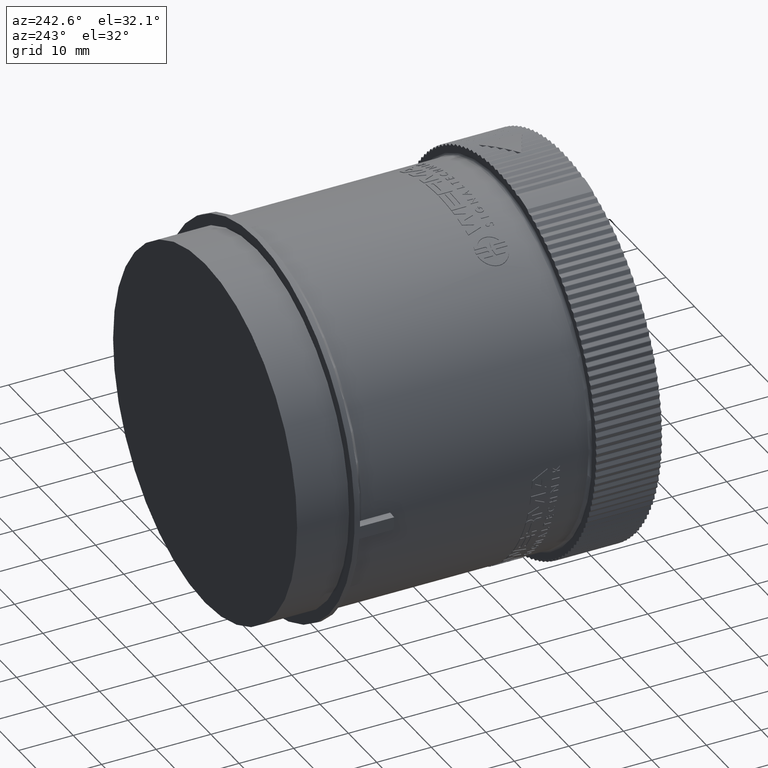
[diagram: clean part render]
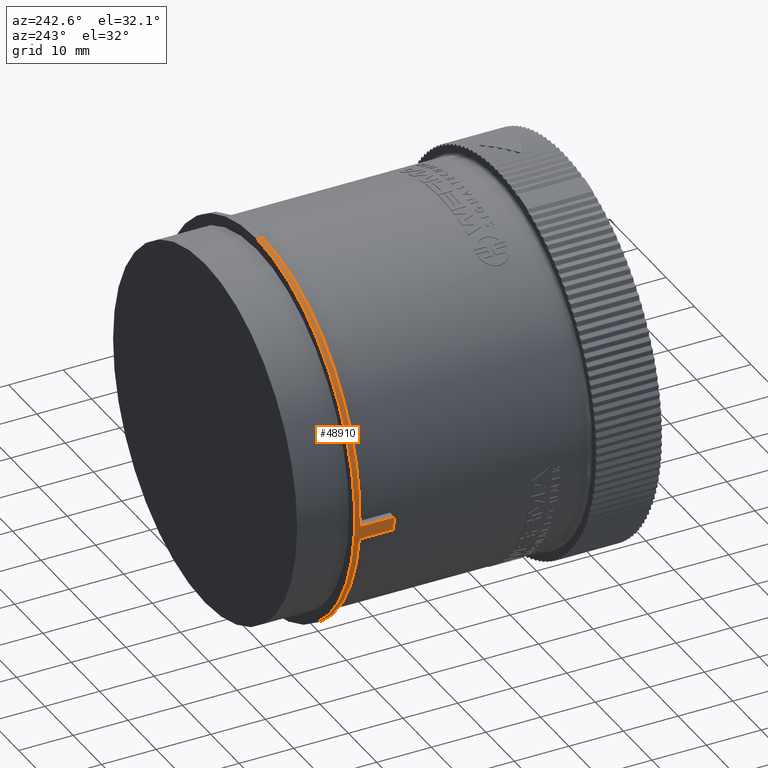
[diagram: same view with one face highlighted and labeled with its STEP entity id]
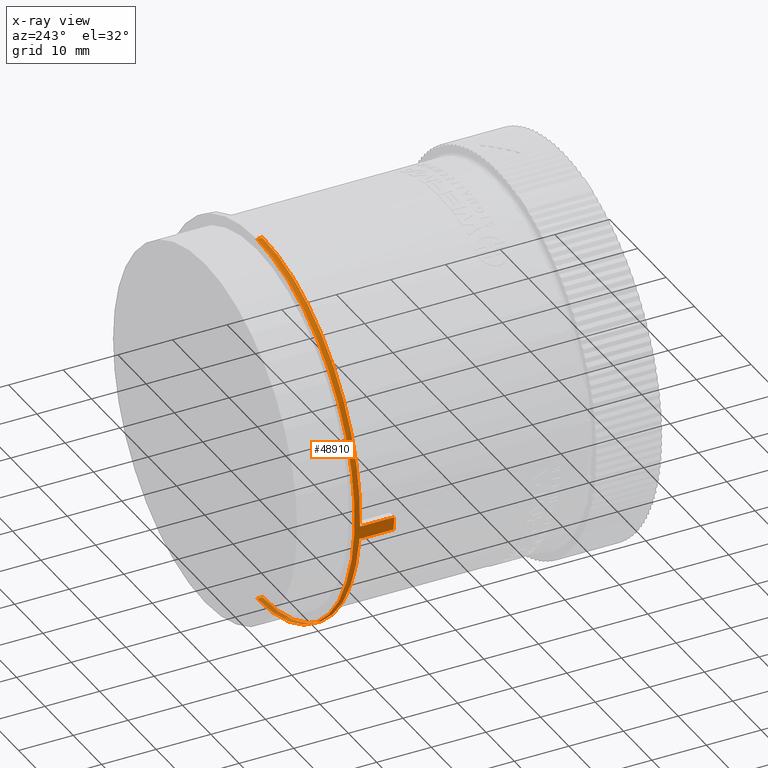
[diagram: x-ray of the same camera — body ghosted, the highlighted face saturated]
A machine part, auxiliary view. The second image highlights one B-rep face of the part: STEP entity #48910.
The next image is the same camera in x-ray: the body ghosted, the highlighted face saturated — about 5% of this face is hidden behind the body in this view.
In plain terms, the highlighted cylindrical surface (partial cylindrical patch) has radius 34.5 mm, axis along (0, -1, 0).
Its self-contained STEP definition (entity closure, byte-faithful):
#5 = CARTESIAN_POINT ( 'NONE',  ( 0.0000000000000000000, 2.185039370078740700, 0.0000000000000000000 ) ) ;
#154 = DIRECTION ( 'NONE',  ( 0.0000000000000000000, 0.0000000000000000000, -1.000000000000000000 ) ) ;
#458 = LINE ( 'NONE', #4933, #19859 ) ;
#694 = VERTEX_POINT ( 'NONE', #27841 ) ;
#833 = EDGE_CURVE ( 'NONE', #5291, #23348, #49723, .T. ) ;
#2002 = DIRECTION ( 'NONE',  ( 0.0000000000000000000, 0.0000000000000000000, -1.000000000000000000 ) ) ;
#2502 = ORIENTED_EDGE ( 'NONE', *, *, #5493, .F. ) ;
#3747 = DIRECTION ( 'NONE',  ( 0.0000000000000000000, -1.000000000000000000, 0.0000000000000000000 ) ) ;
#4933 = CARTESIAN_POINT ( 'NONE',  ( -1.356499826672729900, 2.204724409448819400, -0.06927777435247771400 ) ) ;
#5291 = VERTEX_POINT ( 'NONE', #44694 ) ;
#5493 = EDGE_CURVE ( 'NONE', #5291, #26216, #16349, .T. ) ;
#6168 = FACE_OUTER_BOUND ( 'NONE', #42176, .T. ) ;
#6377 = CARTESIAN_POINT ( 'NONE',  ( 0.0000000000000000000, 2.185039370078740700, -1.358267716535433300 ) ) ;
#7996 = ORIENTED_EDGE ( 'NONE', *, *, #8808, .F. ) ;
#8348 = ORIENTED_EDGE ( 'NONE', *, *, #49016, .F. ) ;
#8808 = EDGE_CURVE ( 'NONE', #26341, #27035, #458, .T. ) ;
#9322 = ORIENTED_EDGE ( 'NONE', *, *, #36774, .T. ) ;
#9392 = DIRECTION ( 'NONE',  ( 0.0000000000000000000, -1.000000000000000000, 0.0000000000000000000 ) ) ;
#9503 = CARTESIAN_POINT ( 'NONE',  ( -1.356499826672729900, 2.165354330708661600, -0.06927777435247772800 ) ) ;
#9612 = ORIENTED_EDGE ( 'NONE', *, *, #18564, .T. ) ;
#11179 = AXIS2_PLACEMENT_3D ( 'NONE', #40316, #16965, #44205 ) ;
#11619 = EDGE_CURVE ( 'NONE', #23348, #694, #33641, .T. ) ;
#12171 = AXIS2_PLACEMENT_3D ( 'NONE', #5, #3747, #19334 ) ;
#12922 = VECTOR ( 'NONE', #18039, 39.37007874015748100 ) ;
#15296 = ORIENTED_EDGE ( 'NONE', *, *, #11619, .T. ) ;
#15320 = CARTESIAN_POINT ( 'NONE',  ( 0.0000000000000000000, 2.204724409448819400, -1.358267716535433300 ) ) ;
#15571 = CARTESIAN_POINT ( 'NONE',  ( 1.663398211440302800E-016, 2.185039370078740700, 1.358267716535433300 ) ) ;
#16349 = LINE ( 'NONE', #15571, #25489 ) ;
#16965 = DIRECTION ( 'NONE',  ( -0.0000000000000000000, 1.000000000000000000, -0.0000000000000000000 ) ) ;
#17356 = VERTEX_POINT ( 'NONE', #35623 ) ;
#18039 = DIRECTION ( 'NONE',  ( 0.0000000000000000000, -1.000000000000000000, 0.0000000000000000000 ) ) ;
#18564 = EDGE_CURVE ( 'NONE', #26341, #26216, #32271, .T. ) ;
#19334 = DIRECTION ( 'NONE',  ( 0.0000000000000000000, 0.0000000000000000000, -1.000000000000000000 ) ) ;
#19859 = VECTOR ( 'NONE', #36046, 39.37007874015748100 ) ;
#20042 = CARTESIAN_POINT ( 'NONE',  ( 1.663398211440302800E-016, 2.165354330708661600, 1.358267716535433300 ) ) ;
#20137 = AXIS2_PLACEMENT_3D ( 'NONE', #48520, #25248, #2002 ) ;
#21624 = CIRCLE ( 'NONE', #20137, 1.358267716535433300 ) ;
#23149 = LINE ( 'NONE', #31581, #42628 ) ;
#23348 = VERTEX_POINT ( 'NONE', #15320 ) ;
#23412 = DIRECTION ( 'NONE',  ( -0.0000000000000000000, 1.000000000000000000, -0.0000000000000000000 ) ) ;
#24668 = AXIS2_PLACEMENT_3D ( 'NONE', #32705, #9392, #36614 ) ;
#25248 = DIRECTION ( 'NONE',  ( -0.0000000000000000000, 1.000000000000000000, -0.0000000000000000000 ) ) ;
#25292 = VERTEX_POINT ( 'NONE', #44996 ) ;
#25489 = VECTOR ( 'NONE', #27336, 39.37007874015748100 ) ;
#25578 = CYLINDRICAL_SURFACE ( 'NONE', #12171, 1.358267716535433300 ) ;
#25747 = CARTESIAN_POINT ( 'NONE',  ( -1.356499826672729900, 1.919291338582677500, -0.06927777435247771400 ) ) ;
#26216 = VERTEX_POINT ( 'NONE', #20042 ) ;
#26341 = VERTEX_POINT ( 'NONE', #9503 ) ;
#27035 = VERTEX_POINT ( 'NONE', #25747 ) ;
#27054 = AXIS2_PLACEMENT_3D ( 'NONE', #46665, #23412, #154 ) ;
#27336 = DIRECTION ( 'NONE',  ( 0.0000000000000000000, -1.000000000000000000, 0.0000000000000000000 ) ) ;
#27626 = ORIENTED_EDGE ( 'NONE', *, *, #833, .T. ) ;
#27841 = CARTESIAN_POINT ( 'NONE',  ( 0.0000000000000000000, 2.165354330708661600, -1.358267716535433300 ) ) ;
#31581 = CARTESIAN_POINT ( 'NONE',  ( -1.347921505536150200, 2.204724409448819400, -0.1673284336134690200 ) ) ;
#32271 = CIRCLE ( 'NONE', #27054, 1.358267716535433300 ) ;
#32705 = CARTESIAN_POINT ( 'NONE',  ( 0.0000000000000000000, 2.204724409448819400, 0.0000000000000000000 ) ) ;
#33641 = LINE ( 'NONE', #6377, #12922 ) ;
#35623 = CARTESIAN_POINT ( 'NONE',  ( -1.347921505536150400, 1.919291338582677300, -0.1673284336134690500 ) ) ;
#36046 = DIRECTION ( 'NONE',  ( -0.0000000000000000000, -1.000000000000000000, 0.0000000000000000000 ) ) ;
#36614 = DIRECTION ( 'NONE',  ( 0.0000000000000000000, 0.0000000000000000000, -1.000000000000000000 ) ) ;
#36774 = EDGE_CURVE ( 'NONE', #17356, #27035, #46796, .T. ) ;
#39423 = DIRECTION ( 'NONE',  ( 0.0000000000000000000, 1.000000000000000000, 0.0000000000000000000 ) ) ;
#40313 = ORIENTED_EDGE ( 'NONE', *, *, #40479, .T. ) ;
#40316 = CARTESIAN_POINT ( 'NONE',  ( 0.0000000000000000000, 1.919291338582677500, 0.0000000000000000000 ) ) ;
#40479 = EDGE_CURVE ( 'NONE', #694, #25292, #21624, .T. ) ;
#42176 = EDGE_LOOP ( 'NONE', ( #2502, #27626, #15296, #40313, #8348, #9322, #7996, #9612 ) ) ;
#42628 = VECTOR ( 'NONE', #39423, 39.37007874015748100 ) ;
#44205 = DIRECTION ( 'NONE',  ( 0.0000000000000000000, 0.0000000000000000000, -1.000000000000000000 ) ) ;
#44694 = CARTESIAN_POINT ( 'NONE',  ( 1.663398211440302800E-016, 2.204724409448819400, 1.358267716535433300 ) ) ;
#44996 = CARTESIAN_POINT ( 'NONE',  ( -1.347921505536150400, 2.165354330708661600, -0.1673284336134690500 ) ) ;
#46665 = CARTESIAN_POINT ( 'NONE',  ( 0.0000000000000000000, 2.165354330708661600, 0.0000000000000000000 ) ) ;
#46796 = CIRCLE ( 'NONE', #11179, 1.358267716535433300 ) ;
#48520 = CARTESIAN_POINT ( 'NONE',  ( 0.0000000000000000000, 2.165354330708661600, 0.0000000000000000000 ) ) ;
#48910 = ADVANCED_FACE ( 'NONE', ( #6168 ), #25578, .T. ) ;
#49016 = EDGE_CURVE ( 'NONE', #17356, #25292, #23149, .T. ) ;
#49723 = CIRCLE ( 'NONE', #24668, 1.358267716535433300 ) ;